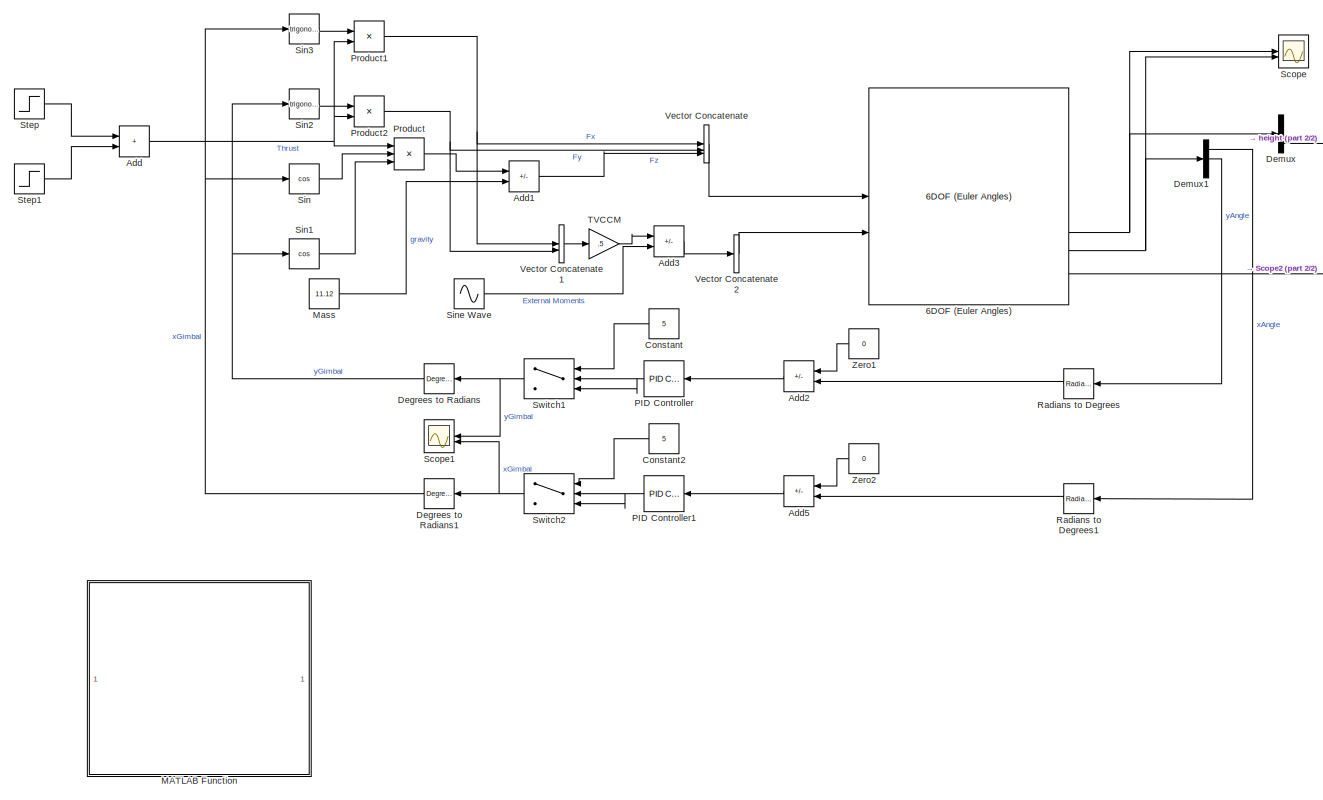
[diagram: root canvas - part 1/2, most of the canvas]
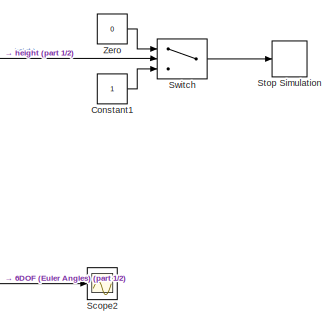
[diagram: root canvas - part 2/2, top right region]
MODEL slx_8491d34ef4a0
KIND model
CONFIG AbsTol = auto
CONFIG EnableMultiTasking = off
CONFIG FixedStep = auto
CONFIG MaxStep = auto
CONFIG MinStep = auto
CONFIG RelTol = 1e-3
CONFIG SampleTimeConstraint = Unconstrained
CONFIG SolverName = VariableStepAuto
CONFIG StartTime = 0.0
CONFIG StopTime = 90
BLOCK [Reference] 6DOF (Euler Angles)  REF=shared6dof/6DOF (Euler Angles)
  LibrarySourceBlock = aerolib6dof2/6DOF (Euler Angles)
  SourceBlock = shared6dof/6DOF (Euler Angles)
  SourceType = 6DOF EoM (Body Axis)
BLOCK [Sum] Add
  IconShape = rectangular
BLOCK [Sum] Add1
  IconShape = rectangular
  Inputs = +-
BLOCK [Sum] Add2
  IconShape = rectangular
  Inputs = +-
BLOCK [Sum] Add3
  IconShape = rectangular
  Inputs = +-
BLOCK [Sum] Add5
  IconShape = rectangular
  Inputs = +-
BLOCK [Constant] Constant
  Value = 5
BLOCK [Constant] Constant1
BLOCK [Constant] Constant2
  Value = 5
BLOCK [Reference] Degrees to Radians  REF=simulink_extras/Transformations/Degrees to
Radians
  SourceBlock = simulink_extras/Transformations/Degrees to\nRadians
  SourceType = DegreesToRadians
BLOCK [Reference] Degrees to Radians1  REF=simulink_extras/Transformations/Degrees to
Radians
  SourceBlock = simulink_extras/Transformations/Degrees to\nRadians
  SourceType = DegreesToRadians
BLOCK [Demux] Demux
  Outputs = 3
BLOCK [Demux] Demux1
  Outputs = 3
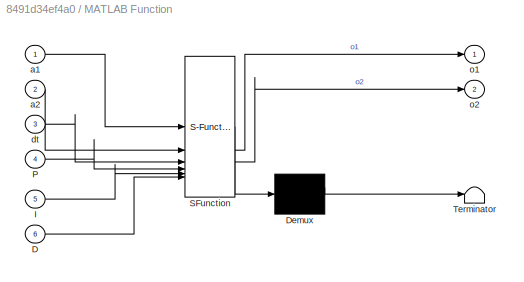
BLOCK [SubSystem] MATLAB Function
  ErrorFcn = Stateflow.Translate.translate
  PermitHierarchicalResolution = ExplicitOnly
  SFBlockType = MATLAB Function
  TreatAsAtomicUnit = on
BLOCK [Demux] MATLAB Function/ Demux 
  Outputs = 1
BLOCK [S-Function] MATLAB Function/ SFunction 
  EnableBusSupport = off
  FunctionName = sf_sfun
  PortCounts = [6 3]
  SFcnIsStateOwnerBlock = off
  SFunctionDeploymentMode = off
  Tag = Stateflow S-Function 2
BLOCK [Terminator] MATLAB Function/ Terminator 
BLOCK [Inport] MATLAB Function/D
  Port = 6
BLOCK [Inport] MATLAB Function/I
  Port = 5
BLOCK [Inport] MATLAB Function/P
  Port = 4
BLOCK [Inport] MATLAB Function/a1
BLOCK [Inport] MATLAB Function/a2
  Port = 2
BLOCK [Inport] MATLAB Function/dt
  Port = 3
BLOCK [Outport] MATLAB Function/o1
BLOCK [Outport] MATLAB Function/o2
  Port = 2
BLOCK [Constant] Mass
  Value = 11.12
BLOCK [Reference] PID Controller  REF=slpidlib/PID Controller
  LibrarySourceBlock = simulink/Continuous/PID Controller
  SourceBlock = slpidlib/PID Controller
  SourceType = PID 1dof
BLOCK [Reference] PID Controller1  REF=slpidlib/PID Controller
  LibrarySourceBlock = simulink/Continuous/PID Controller
  SourceBlock = slpidlib/PID Controller
  SourceType = PID 1dof
BLOCK [Product] Product
  Inputs = 3
BLOCK [Product] Product1
BLOCK [Product] Product2
BLOCK [Reference] Radians to Degrees  REF=simulink_extras/Transformations/Radians
to Degrees
  SourceBlock = simulink_extras/Transformations/Radians\nto Degrees
  SourceType = RadiansToDegrees
BLOCK [Reference] Radians to Degrees1  REF=simulink_extras/Transformations/Radians
to Degrees
  SourceBlock = simulink_extras/Transformations/Radians\nto Degrees
  SourceType = RadiansToDegrees
BLOCK [Scope] Scope
  Floating = off
  NumInputPorts = 2
  ScopeSpecificationString = Simulink.scopes.TimeScopeBlockCfg('CurrentConfiguration', extmgr.ConfigurationSet(extmgr.Configuration('Core','General UI',true),extmgr.Configuration('Core','Source UI',true),extmgr.Configuration('Sources','WiredSimulink',true),extmgr.Configuration('Visuals','Time Domain',true,'SerializedDisplays',{struct('MinYLimReal','-8.43326','MaxYLimReal','14.99554','YLabelReal','','MinYLimMag','0.00000','Max...<+1709ch>
BLOCK [Scope] Scope1
  Floating = off
  NumInputPorts = 2
  ScopeSpecificationString = Simulink.scopes.TimeScopeBlockCfg('CurrentConfiguration', extmgr.ConfigurationSet(extmgr.Configuration('Core','General UI',true),extmgr.Configuration('Core','Source UI',true),extmgr.Configuration('Sources','WiredSimulink',true,'DataLoggingVariableName','ScopeData1'),extmgr.Configuration('Visuals','Time Domain',true,'SerializedDisplays',{struct('MinYLimReal','-320.32843','MaxYLimReal','41.1476','YL...<+1458ch>
BLOCK [Scope] Scope2
  Floating = off
  NumInputPorts = 1
  ScopeSpecificationString = Simulink.scopes.TimeScopeBlockCfg('CurrentConfiguration', extmgr.ConfigurationSet(extmgr.Configuration('Core','General UI',true),extmgr.Configuration('Core','Source UI',true),extmgr.Configuration('Sources','WiredSimulink',true,'DataLoggingVariableName','ScopeData1'),extmgr.Configuration('Visuals','Time Domain',true,'SerializedDisplays',{struct('MinYLimReal','-0.75244','MaxYLimReal','4.25168','YLab...<+1463ch>
BLOCK [Trigonometry] Sin
  Operator = cos
BLOCK [Trigonometry] Sin1
  Operator = cos
BLOCK [Trigonometry] Sin2
BLOCK [Trigonometry] Sin3
BLOCK [Sin] Sine Wave
  Amplitude = 2
  Frequency = 0.5
  SampleTime = 0
BLOCK [Step] Step
  After = 64
  SampleTime = 0
  Time = 0
BLOCK [Step] Step1
  After = -64
  SampleTime = 0
  Time = 5.25
BLOCK [Stop] Stop Simulation
BLOCK [Switch] Switch
  InputSameDT = off
  SaturateOnIntegerOverflow = off
BLOCK [Switch] Switch1
  Criteria = u2 > Threshold
  InputSameDT = off
  SaturateOnIntegerOverflow = off
  Threshold = 5
BLOCK [Switch] Switch2
  Criteria = u2 > Threshold
  InputSameDT = off
  SaturateOnIntegerOverflow = off
  Threshold = 5
BLOCK [Gain] TVCCM
  Gain = .5
BLOCK [Concatenate] Vector Concatenate
  NumInputs = 3
BLOCK [Concatenate] Vector Concatenate1
BLOCK [Concatenate] Vector Concatenate2
BLOCK [Constant] Zero
  OutDataTypeStr = Inherit: Inherit via back propagation
  Value = 0
BLOCK [Constant] Zero1
  OutDataTypeStr = Inherit: Inherit via back propagation
  Value = 0
BLOCK [Constant] Zero2
  OutDataTypeStr = Inherit: Inherit via back propagation
  Value = 0
NET 6DOF (Euler Angles):2 -> Demux:1, Scope:1
NET 6DOF (Euler Angles):3 -> Demux1:1, Scope:2
LINE 6DOF (Euler Angles):6 -> Scope2:1
LINE Add1:1 -> Vector Concatenate:3
LINE Add2:1 -> PID Controller:1
LINE Add3:1 -> Vector Concatenate2:1
LINE Add5:1 -> PID Controller1:1
NET Add:1 -> Product1:2, Product2:2, Product:1
LINE Constant1:1 -> Switch:3
LINE Constant2:1 -> Switch2:1
LINE Constant:1 -> Switch1:1
NET Degrees to Radians1:1 -> Sin3:1, Sin:1
NET Degrees to Radians:1 -> Sin1:1, Sin2:1
LINE Demux1:1 -> Radians to Degrees1:1
LINE Demux1:2 -> Radians to Degrees:1
LINE Demux:3 -> Switch:2
LINE Mass:1 -> Add1:2
NET PID Controller1:1 -> Switch2:2, Switch2:3
NET PID Controller:1 -> Switch1:2, Switch1:3
NET Product1:1 -> Vector Concatenate1:1, Vector Concatenate:1
NET Product2:1 -> Vector Concatenate1:2, Vector Concatenate:2
LINE Product:1 -> Add1:1
LINE Radians to Degrees1:1 -> Add5:2
LINE Radians to Degrees:1 -> Add2:2
LINE Sin1:1 -> Product:3
LINE Sin2:1 -> Product2:1
LINE Sin3:1 -> Product1:1
LINE Sin:1 -> Product:2
LINE Sine Wave:1 -> Add3:2
LINE Step1:1 -> Add:2
LINE Step:1 -> Add:1
NET Switch1:1 -> Degrees to Radians:1, Scope1:1
NET Switch2:1 -> Degrees to Radians1:1, Scope1:2
LINE Switch:1 -> Stop Simulation:1
LINE TVCCM:1 -> Add3:1
LINE Vector Concatenate1:1 -> TVCCM:1
LINE Vector Concatenate2:1 -> 6DOF (Euler Angles):2
LINE Vector Concatenate:1 -> 6DOF (Euler Angles):1
LINE Zero1:1 -> Add2:1
LINE Zero2:1 -> Add5:1
LINE Zero:1 -> Switch:1
note: NET lines group one-source signal fan-out (src -> all destinations, sorted); 1:1 wires keep LINE
CHART MATLAB Function states=1 transitions=1
  STATE_LABEL 'eML_blk_kernel()'
  STATE_LABEL 'SCRIPT:\nfunction [o1,o2] = TVC(a1,a2,dt,P,I,D)\n\n% ***All angles in radians***\n%a1,a2 are current error values (from IMU)\n%a1l,a2l are last error values\n\nglobal xErr\nglobal yErr\nglobal xLast\nglobal yLast\n\nxErr=xErr+a1;\nyErr=yErr+a2;\n\n%Calculate output\no1=P(a1)+D*(a1-xLast)/dt+I*xErr;\no2=P(a2)+D*(a2-yLast)/dt+I*yErr;\n\nxLast=a1;\nyLast=a2;\n\nif a1>deg2rad(actMax)\n    o1=deg2rad(actMax);\nend\n\nif a2>deg2...<+46ch>'
CHART  states=0 transitions=0
